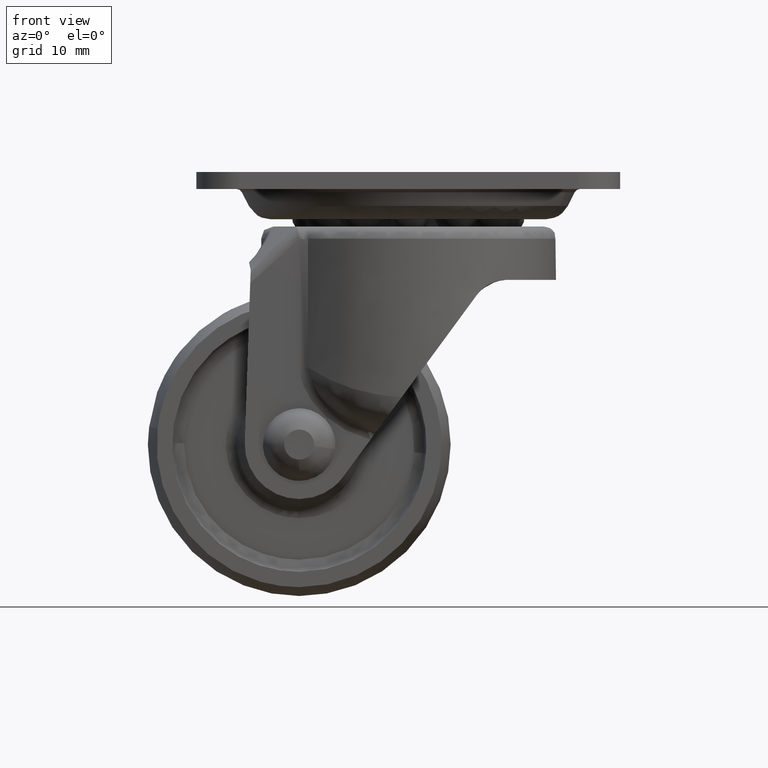
[diagram: clean part render]
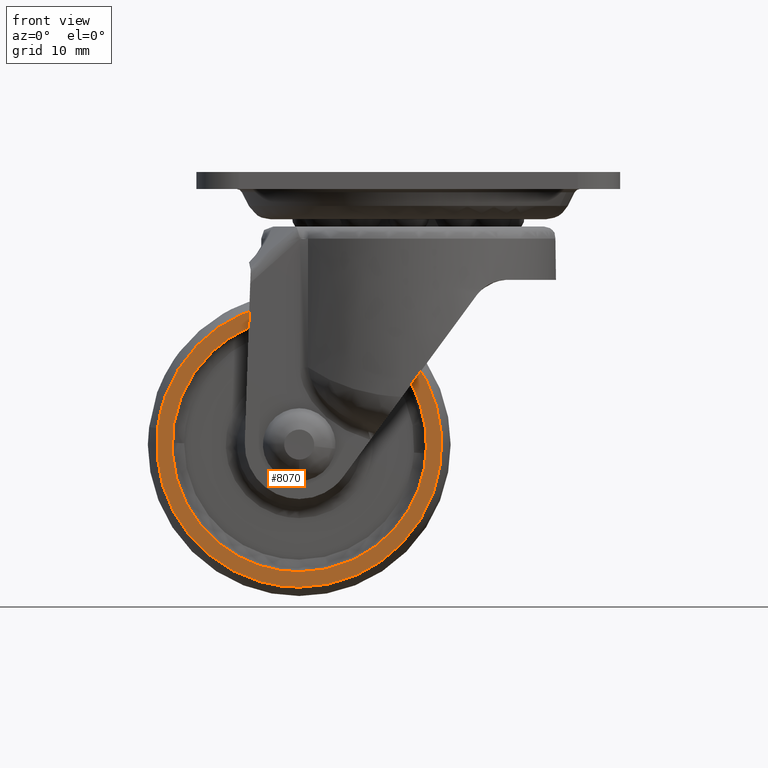
[diagram: same view with one face highlighted and labeled with its STEP entity id]
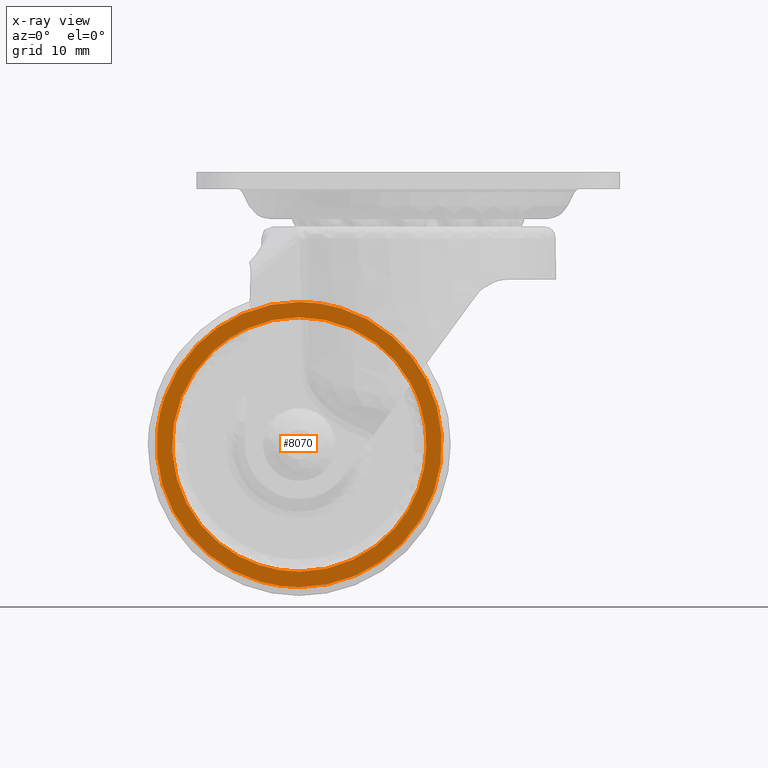
[diagram: x-ray of the same camera — body ghosted, the highlighted face saturated]
A machine part, front view. The second image highlights one B-rep face of the part: STEP entity #8070.
The next image is the same camera in x-ray: the body ghosted, the highlighted face saturated — about 0% of this face is hidden behind the body in this view.
In plain terms, the highlighted face is a freeform B-spline surface patch.
Its self-contained STEP definition (entity closure, byte-faithful):
#5837=CARTESIAN_POINT('',(9.186937766344983,-5.999999999999919,5.084306685999960));
#5838=VERTEX_POINT('',#5837);
#5844=CARTESIAN_POINT('',(0.0,-5.999999999999920,10.500000000000000));
#5845=VERTEX_POINT('',#5844);
#5846=CARTESIAN_POINT('',(9.186937766344983,-5.999999999999919,5.084306685999960));
#5847=CARTESIAN_POINT('',(6.189742958902409,-5.999999999999920,10.500000000000002));
#5848=CARTESIAN_POINT('',(0.0,-5.999999999999920,10.500000000000000));
#5856=(BOUNDED_CURVE()B_SPLINE_CURVE(2,(#5846,#5847,#5848),.UNSPECIFIED.,.F.,.U.)B_SPLINE_CURVE_WITH_KNOTS((3,3),(0.332484272130938,0.500000000000000),.UNSPECIFIED.)CURVE()GEOMETRIC_REPRESENTATION_ITEM()RATIONAL_B_SPLINE_CURVE((0.870495150873598,0.803743117050208,1.0))REPRESENTATION_ITEM(''));
#5857=EDGE_CURVE('',#5838,#5845,#5856,.T.);
#5859=CARTESIAN_POINT('',(-7.093696784438748,-5.999999999999920,7.741412398938777));
#5860=VERTEX_POINT('',#5859);
#5861=CARTESIAN_POINT('',(0.0,-5.999999999999920,10.500000000000000));
#5862=CARTESIAN_POINT('',(-4.083226066860161,-5.999999999999920,10.500000000000000));
#5863=CARTESIAN_POINT('',(-7.093696784438748,-5.999999999999920,7.741412398938777));
#5871=(BOUNDED_CURVE()B_SPLINE_CURVE(2,(#5861,#5862,#5863),.UNSPECIFIED.,.F.,.U.)B_SPLINE_CURVE_WITH_KNOTS((3,3),(0.500000000000000,0.618415193658299),.UNSPECIFIED.)CURVE()GEOMETRIC_REPRESENTATION_ITEM()RATIONAL_B_SPLINE_CURVE((1.0,0.861267971092010,0.853959782742007))REPRESENTATION_ITEM(''));
#5872=EDGE_CURVE('',#5845,#5860,#5871,.T.);
#5982=CARTESIAN_POINT('',(0.0,-5.999999999999920,-10.500000000000000));
#5983=VERTEX_POINT('',#5982);
#5984=CARTESIAN_POINT('',(-7.093696784438748,-5.999999999999920,7.741412398938777));
#5985=CARTESIAN_POINT('',(-10.500000000000000,-5.999999999999920,4.620111214697388));
#5986=CARTESIAN_POINT('',(-10.500000000000000,-5.999999999999920,-8.061993E-016));
#5987=CARTESIAN_POINT('',(-10.500000000000000,-5.999999999999919,-10.500000000000000));
#5988=CARTESIAN_POINT('',(0.0,-5.999999999999920,-10.500000000000000));
#5996=(BOUNDED_CURVE()B_SPLINE_CURVE(2,(#5984,#5985,#5986,#5987,#5988),.UNSPECIFIED.,.F.,.U.)B_SPLINE_CURVE_WITH_KNOTS((3,2,3),(0.618415193658300,0.750000000000000,1.0),.UNSPECIFIED.)CURVE()GEOMETRIC_REPRESENTATION_ITEM()RATIONAL_B_SPLINE_CURVE((0.853959782742007,0.845838810094538,1.0,0.707106781186547,1.0))REPRESENTATION_ITEM(''));
#5997=EDGE_CURVE('',#5860,#5983,#5996,.T.);
#5999=CARTESIAN_POINT('',(0.0,-5.999999999999920,-10.500000000000000));
#6000=CARTESIAN_POINT('',(10.500000000000000,-5.999999999999919,-10.500000000000000));
#6001=CARTESIAN_POINT('',(10.500000000000000,-5.999999999999920,-8.061993E-016));
#6002=CARTESIAN_POINT('',(10.500000000000000,-5.999999999999920,2.711707366792248));
#6003=CARTESIAN_POINT('',(9.186937766344983,-5.999999999999919,5.084306685999960));
#6011=(BOUNDED_CURVE()B_SPLINE_CURVE(2,(#5999,#6000,#6001,#6002,#6003),.UNSPECIFIED.,.F.,.U.)B_SPLINE_CURVE_WITH_KNOTS((3,2,3),(0.0,0.250000000000000,0.332484272130938),.UNSPECIFIED.)CURVE()GEOMETRIC_REPRESENTATION_ITEM()RATIONAL_B_SPLINE_CURVE((1.0,0.707106781186547,1.0,0.903363664136340,0.870495150873598))REPRESENTATION_ITEM(''));
#6012=EDGE_CURVE('',#5983,#5838,#6011,.T.);
#7895=CARTESIAN_POINT('',(-11.690605269687421,-5.999999584861209,1.358931023352750));
#7896=VERTEX_POINT('',#7895);
#7897=CARTESIAN_POINT('',(0.0,-5.999999999999920,-11.769322000000100));
#7898=VERTEX_POINT('',#7897);
#7899=CARTESIAN_POINT('',(-11.690605269687415,-5.999999584861209,1.358931023352750));
#7900=CARTESIAN_POINT('',(-11.769322000000102,-5.999999999999921,0.681745363826555));
#7901=CARTESIAN_POINT('',(-11.769322000000100,-5.999999999999920,-8.061993E-016));
#7902=CARTESIAN_POINT('',(-11.769322000000102,-5.999999999999919,-11.769322000000102));
#7903=CARTESIAN_POINT('',(0.0,-5.999999999999920,-11.769322000000100));
#7911=(BOUNDED_CURVE()B_SPLINE_CURVE(2,(#7899,#7900,#7901,#7902,#7903),.UNSPECIFIED.,.F.,.U.)B_SPLINE_CURVE_WITH_KNOTS((3,2,3),(0.730000067925092,0.750000000000000,1.0),.UNSPECIFIED.)CURVE()GEOMETRIC_REPRESENTATION_ITEM()RATIONAL_B_SPLINE_CURVE((0.956886251883750,0.976568622074119,1.0,0.707106781186547,1.0))REPRESENTATION_ITEM(''));
#7912=EDGE_CURVE('',#7896,#7898,#7911,.T.);
#7965=CARTESIAN_POINT('',(0.0,-5.999996491529000,11.769322966895359));
#7966=VERTEX_POINT('',#7965);
#7982=CARTESIAN_POINT('',(0.0,-5.999999999999920,-11.769322000000100));
#7983=CARTESIAN_POINT('',(11.769322000000102,-5.999999999999919,-11.769322000000102));
#7984=CARTESIAN_POINT('',(11.769322000000100,-5.999998245764460,0.000000483447630));
#7985=CARTESIAN_POINT('',(11.769322000000102,-5.999996491529000,11.769322966895363));
#7986=CARTESIAN_POINT('',(0.0,-5.999996491529000,11.769322966895359));
#7994=(BOUNDED_CURVE()B_SPLINE_CURVE(2,(#7982,#7983,#7984,#7985,#7986),.UNSPECIFIED.,.F.,.U.)B_SPLINE_CURVE_WITH_KNOTS((3,2,3),(0.0,0.250000000000000,0.500000000000000),.UNSPECIFIED.)CURVE()GEOMETRIC_REPRESENTATION_ITEM()RATIONAL_B_SPLINE_CURVE((1.0,0.707106781186547,1.0,0.707106781186547,1.0))REPRESENTATION_ITEM(''));
#7995=EDGE_CURVE('',#7898,#7966,#7994,.T.);
#8023=CARTESIAN_POINT('',(0.0,-5.999996491529000,11.769322966895359));
#8024=CARTESIAN_POINT('',(-10.480487902583665,-5.999998038195104,11.769322495117873));
#8025=CARTESIAN_POINT('',(-11.690605269687415,-5.999999584861209,1.358931023352750));
#8033=(BOUNDED_CURVE()B_SPLINE_CURVE(2,(#8023,#8024,#8025),.UNSPECIFIED.,.F.,.U.)B_SPLINE_CURVE_WITH_KNOTS((3,3),(0.500000000000000,0.730000067925092),.UNSPECIFIED.)CURVE()GEOMETRIC_REPRESENTATION_ITEM()RATIONAL_B_SPLINE_CURVE((1.0,0.730538159112429,0.956886251883750))REPRESENTATION_ITEM(''));
#8034=EDGE_CURVE('',#7966,#7896,#8033,.T.);
#8054=CARTESIAN_POINT('',(-12.945010586894091,-5.999999999999920,-12.945077712401980));
#8055=CARTESIAN_POINT('',(-12.945010586894091,-5.999999999999920,12.945078889749130));
#8056=CARTESIAN_POINT('',(12.945074683301840,-5.999999999999920,-12.945077712401980));
#8057=CARTESIAN_POINT('',(12.945074683301840,-5.999999999999920,12.945078889749130));
#8058=B_SPLINE_SURFACE_WITH_KNOTS('',1,1,((#8054,#8056),(#8055,#8057)),.UNSPECIFIED.,.F.,.F.,.U.,(2,2),(2,2),(0.0,25.890156602151109),(0.0,25.890085270195929),.UNSPECIFIED.);
#8059=ORIENTED_EDGE('',*,*,#7995,.T.);
#8060=ORIENTED_EDGE('',*,*,#8034,.T.);
#8061=ORIENTED_EDGE('',*,*,#7912,.T.);
#8062=EDGE_LOOP('',(#8059,#8060,#8061));
#8063=FACE_OUTER_BOUND('',#8062,.T.);
#8064=ORIENTED_EDGE('',*,*,#5872,.F.);
#8065=ORIENTED_EDGE('',*,*,#5857,.F.);
#8066=ORIENTED_EDGE('',*,*,#6012,.F.);
#8067=ORIENTED_EDGE('',*,*,#5997,.F.);
#8068=EDGE_LOOP('',(#8064,#8065,#8066,#8067));
#8069=FACE_BOUND('',#8068,.T.);
#8070=ADVANCED_FACE('',(#8063,#8069),#8058,.F.);